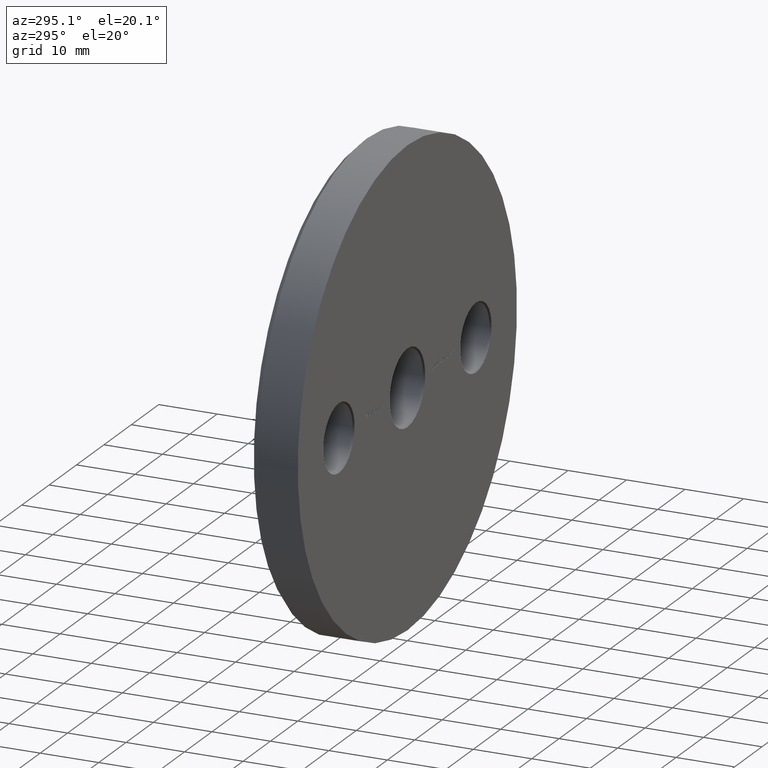
[diagram: clean part render]
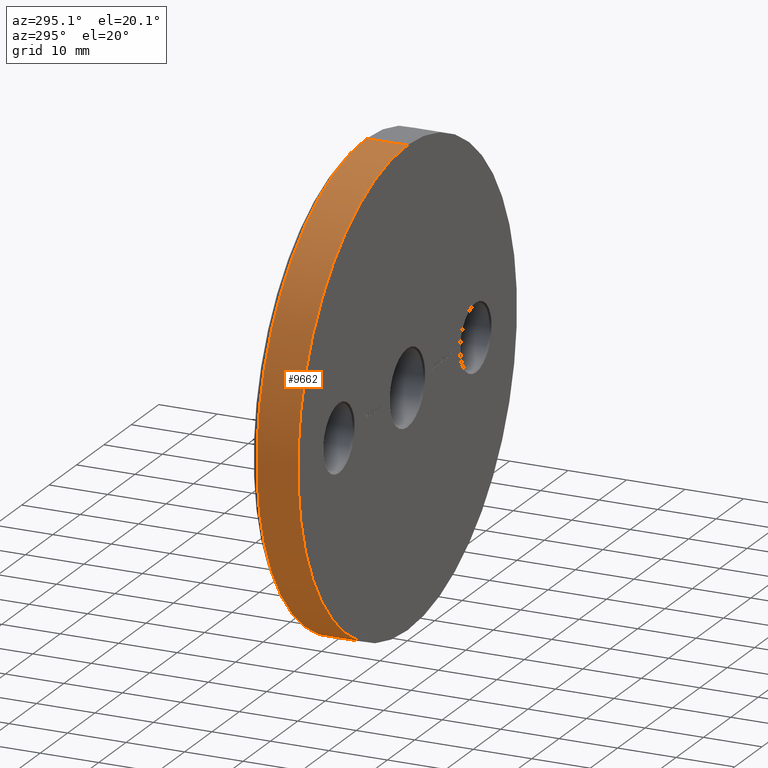
[diagram: same view with one face highlighted and labeled with its STEP entity id]
A machine part, auxiliary view. The second image highlights one B-rep face of the part: STEP entity #9662.
In plain terms, the highlighted cylindrical surface (partial cylindrical patch) has radius 40 mm, axis along (-0, -1, -0).
Its self-contained STEP definition (entity closure, byte-faithful):
#376 = EDGE_CURVE ( 'NONE', #10188, #2929, #11900, .T. ) ;
#513 = ORIENTED_EDGE ( 'NONE', *, *, #376, .T. ) ;
#1621 = DIRECTION ( 'NONE',  ( 0.000000000000000000, 0.000000000000000000, 1.000000000000000000 ) ) ;
#1646 = ORIENTED_EDGE ( 'NONE', *, *, #10746, .T. ) ;
#2131 = DIRECTION ( 'NONE',  ( -0.000000000000000000, -1.000000000000000000, -0.000000000000000000 ) ) ;
#2929 = VERTEX_POINT ( 'NONE', #14006 ) ;
#3344 = CIRCLE ( 'NONE', #4537, 40.00000000000000000 ) ;
#3615 = DIRECTION ( 'NONE',  ( 0.000000000000000000, 0.000000000000000000, -1.000000000000000000 ) ) ;
#3670 = ORIENTED_EDGE ( 'NONE', *, *, #16104, .T. ) ;
#4537 = AXIS2_PLACEMENT_3D ( 'NONE', #9478, #6861, #1621 ) ;
#5259 = FACE_OUTER_BOUND ( 'NONE', #14167, .T. ) ;
#5682 = VERTEX_POINT ( 'NONE', #12587 ) ;
#5745 = CARTESIAN_POINT ( 'NONE',  ( 4.898587196589413026E-15, 8.000000000000000000, 40.00000000000000000 ) ) ;
#5856 = LINE ( 'NONE', #11407, #11628 ) ;
#6861 = DIRECTION ( 'NONE',  ( 0.000000000000000000, 1.000000000000000000, 0.000000000000000000 ) ) ;
#8042 = EDGE_CURVE ( 'NONE', #10188, #5682, #13974, .T. ) ;
#8288 = VERTEX_POINT ( 'NONE', #13605 ) ;
#8331 = AXIS2_PLACEMENT_3D ( 'NONE', #15453, #10203, #3615 ) ;
#8513 = ORIENTED_EDGE ( 'NONE', *, *, #8042, .F. ) ;
#9478 = CARTESIAN_POINT ( 'NONE',  ( 0.000000000000000000, 0.000000000000000000, 0.000000000000000000 ) ) ;
#9536 = DIRECTION ( 'NONE',  ( 0.000000000000000000, -1.000000000000000000, 0.000000000000000000 ) ) ;
#9662 = ADVANCED_FACE ( 'NONE', ( #5259 ), #15364, .T. ) ;
#10188 = VERTEX_POINT ( 'NONE', #14091 ) ;
#10203 = DIRECTION ( 'NONE',  ( -0.000000000000000000, -1.000000000000000000, -0.000000000000000000 ) ) ;
#10746 = EDGE_CURVE ( 'NONE', #8288, #5682, #3344, .T. ) ;
#10757 = DIRECTION ( 'NONE',  ( 0.000000000000000000, 0.000000000000000000, 1.000000000000000000 ) ) ;
#11407 = CARTESIAN_POINT ( 'NONE',  ( 0.000000000000000000, 8.000000000000000000, -40.00000000000000000 ) ) ;
#11628 = VECTOR ( 'NONE', #2131, 1000.000000000000000 ) ;
#11900 = CIRCLE ( 'NONE', #17013, 40.00000000000000000 ) ;
#12248 = CARTESIAN_POINT ( 'NONE',  ( 0.000000000000000000, 7.000000000000006217, 0.000000000000000000 ) ) ;
#12587 = CARTESIAN_POINT ( 'NONE',  ( 4.898587196589413026E-15, 0.000000000000000000, 40.00000000000000000 ) ) ;
#13605 = CARTESIAN_POINT ( 'NONE',  ( 0.000000000000000000, 0.000000000000000000, -40.00000000000000000 ) ) ;
#13799 = DIRECTION ( 'NONE',  ( -0.000000000000000000, -1.000000000000000000, -0.000000000000000000 ) ) ;
#13974 = LINE ( 'NONE', #5745, #14392 ) ;
#14006 = CARTESIAN_POINT ( 'NONE',  ( 0.000000000000000000, 7.000000000000006217, -40.00000000000000000 ) ) ;
#14091 = CARTESIAN_POINT ( 'NONE',  ( 4.898587196589413026E-15, 7.000000000000006217, 40.00000000000000000 ) ) ;
#14167 = EDGE_LOOP ( 'NONE', ( #8513, #513, #3670, #1646 ) ) ;
#14392 = VECTOR ( 'NONE', #13799, 1000.000000000000000 ) ;
#15364 = CYLINDRICAL_SURFACE ( 'NONE', #8331, 40.00000000000000000 ) ;
#15453 = CARTESIAN_POINT ( 'NONE',  ( 0.000000000000000000, 8.000000000000000000, 0.000000000000000000 ) ) ;
#16104 = EDGE_CURVE ( 'NONE', #2929, #8288, #5856, .T. ) ;
#17013 = AXIS2_PLACEMENT_3D ( 'NONE', #12248, #9536, #10757 ) ;